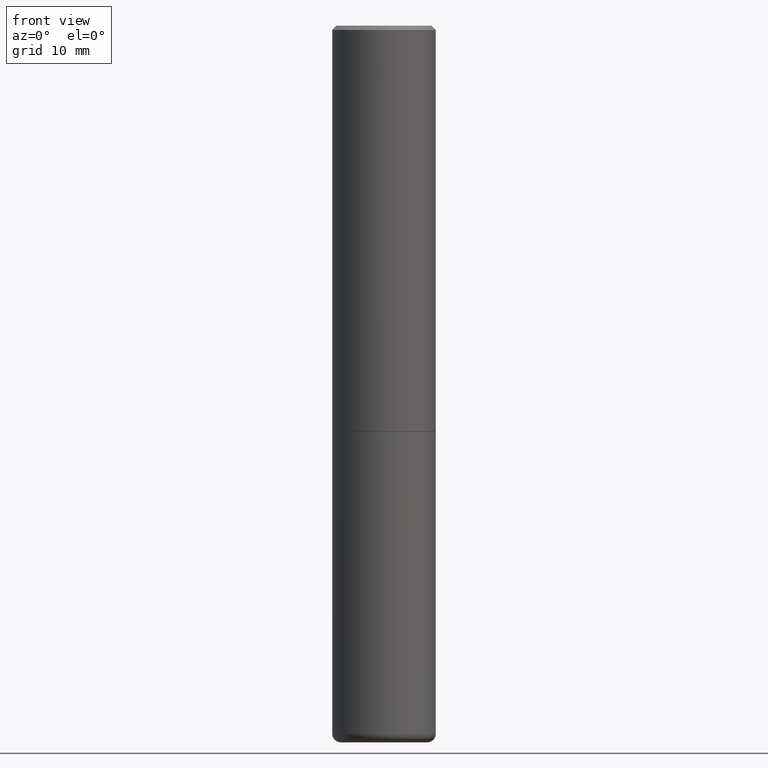
[diagram: clean part render]
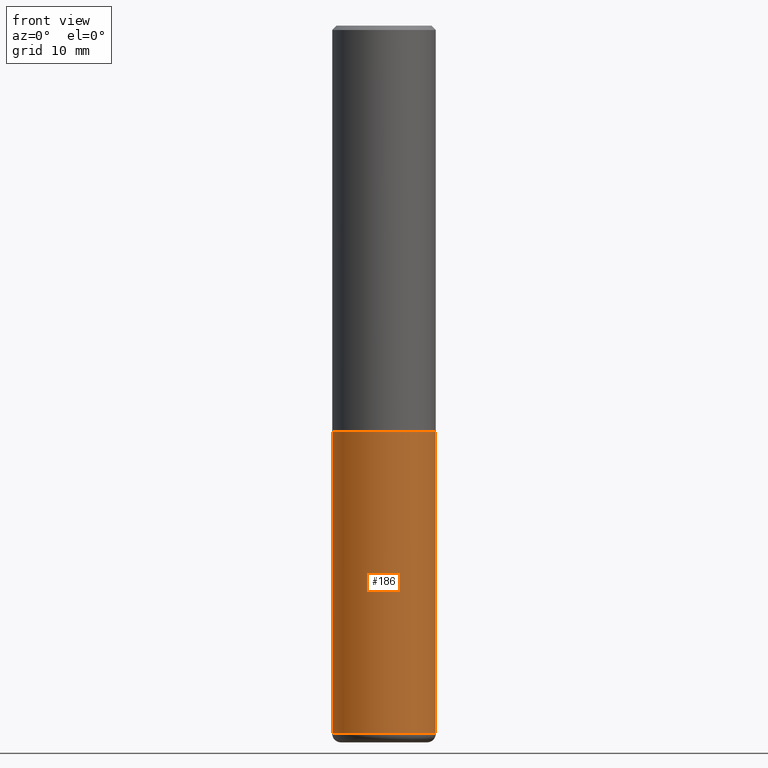
[diagram: same view with one face highlighted and labeled with its STEP entity id]
A machine part, front view. The second image highlights one B-rep face of the part: STEP entity #186.
In plain terms, the highlighted cylindrical surface (partial cylindrical patch) has radius 5.9995 mm, axis along (-0, 0, 1).
Its self-contained STEP definition (entity closure, byte-faithful):
#11 = CARTESIAN_POINT ( 'NONE',  ( -0.2361999999999999933, -7.187791195925986796E-15, -1.850400000000000267 ) ) ;
#37 = CYLINDRICAL_SURFACE ( 'NONE', #227, 0.2361999999999999933 ) ;
#53 = VERTEX_POINT ( 'NONE', #228 ) ;
#69 = CARTESIAN_POINT ( 'NONE',  ( 0.2361999999999999933, -1.292092499065682375E-14, -3.228299999999999947 ) ) ;
#81 = VECTOR ( 'NONE', #334, 39.37007874015748143 ) ;
#99 = ORIENTED_EDGE ( 'NONE', *, *, #267, .T. ) ;
#113 = CARTESIAN_POINT ( 'NONE',  ( -0.2361999999999999933, 1.678301941865356591E-15, -1.161852468318208757E-29 ) ) ;
#129 = DIRECTION ( 'NONE',  ( -2.445468806185136597E-29, 3.491481338843145583E-15, 1.000000000000000000 ) ) ;
#135 = VECTOR ( 'NONE', #178, 39.37007874015748143 ) ;
#159 = EDGE_CURVE ( 'NONE', #53, #201, #356, .T. ) ;
#162 = AXIS2_PLACEMENT_3D ( 'NONE', #417, #129, #389 ) ;
#164 = DIRECTION ( 'NONE',  ( -2.445468806185136597E-29, 3.491481338843145583E-15, 1.000000000000000000 ) ) ;
#178 = DIRECTION ( 'NONE',  ( -2.445468806185136877E-29, 3.491481338843145188E-15, 1.000000000000000000 ) ) ;
#185 = EDGE_LOOP ( 'NONE', ( #347, #255, #99, #320 ) ) ;
#186 = ADVANCED_FACE ( 'NONE', ( #360 ), #37, .T. ) ;
#201 = VERTEX_POINT ( 'NONE', #69 ) ;
#206 = LINE ( 'NONE', #113, #135 ) ;
#213 = CARTESIAN_POINT ( 'NONE',  ( 4.525095478964977394E-29, -6.460637069395357576E-15, -1.850400000000000267 ) ) ;
#227 = AXIS2_PLACEMENT_3D ( 'NONE', #413, #164, #230 ) ;
#228 = CARTESIAN_POINT ( 'NONE',  ( -0.2361999999999999933, -9.593247264321970832E-15, -3.228299999999999947 ) ) ;
#230 = DIRECTION ( 'NONE',  ( 1.000000000000000000, -6.982962677686266711E-15, 4.876176775795936353E-29 ) ) ;
#250 = AXIS2_PLACEMENT_3D ( 'NONE', #213, #375, #341 ) ;
#255 = ORIENTED_EDGE ( 'NONE', *, *, #159, .T. ) ;
#266 = VERTEX_POINT ( 'NONE', #306 ) ;
#267 = EDGE_CURVE ( 'NONE', #201, #266, #367, .T. ) ;
#306 = CARTESIAN_POINT ( 'NONE',  ( 0.2361999999999999933, -8.110012853864854101E-15, -1.850400000000000267 ) ) ;
#312 = VERTEX_POINT ( 'NONE', #11 ) ;
#314 = EDGE_CURVE ( 'NONE', #53, #312, #206, .T. ) ;
#320 = ORIENTED_EDGE ( 'NONE', *, *, #371, .F. ) ;
#334 = DIRECTION ( 'NONE',  ( -2.445468806185136877E-29, 3.491481338843145188E-15, 1.000000000000000000 ) ) ;
#341 = DIRECTION ( 'NONE',  ( 1.000000000000000000, -6.982962677686269077E-15, 0.000000000000000000 ) ) ;
#345 = CARTESIAN_POINT ( 'NONE',  ( 0.2361999999999999933, -1.649375784469496131E-15, 1.151752954443000088E-29 ) ) ;
#347 = ORIENTED_EDGE ( 'NONE', *, *, #314, .F. ) ;
#356 = CIRCLE ( 'NONE', #162, 0.2361999999999999655 ) ;
#360 = FACE_OUTER_BOUND ( 'NONE', #185, .T. ) ;
#367 = LINE ( 'NONE', #345, #81 ) ;
#371 = EDGE_CURVE ( 'NONE', #312, #266, #378, .T. ) ;
#375 = DIRECTION ( 'NONE',  ( -2.445468806185136597E-29, 3.491481338843145583E-15, 1.000000000000000000 ) ) ;
#378 = CIRCLE ( 'NONE', #250, 0.2361999999999999933 ) ;
#389 = DIRECTION ( 'NONE',  ( 1.000000000000000000, -6.982962677686265922E-15, 0.000000000000000000 ) ) ;
#413 = CARTESIAN_POINT ( 'NONE',  ( 0.000000000000000000, 0.000000000000000000, 0.000000000000000000 ) ) ;
#417 = CARTESIAN_POINT ( 'NONE',  ( 7.894706947007477118E-29, -1.127154920618732880E-14, -3.228299999999999947 ) ) ;